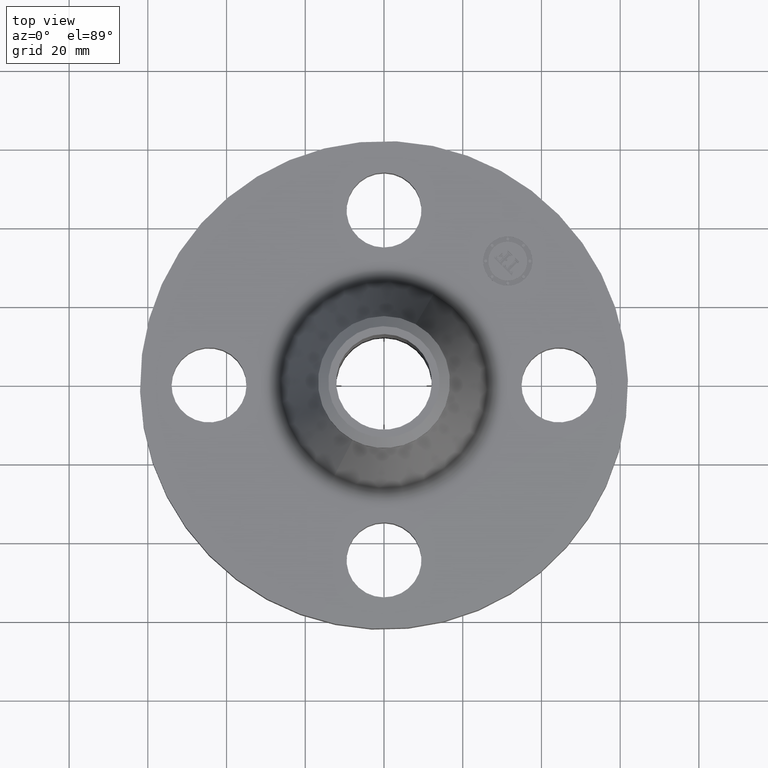
[diagram: clean part render]
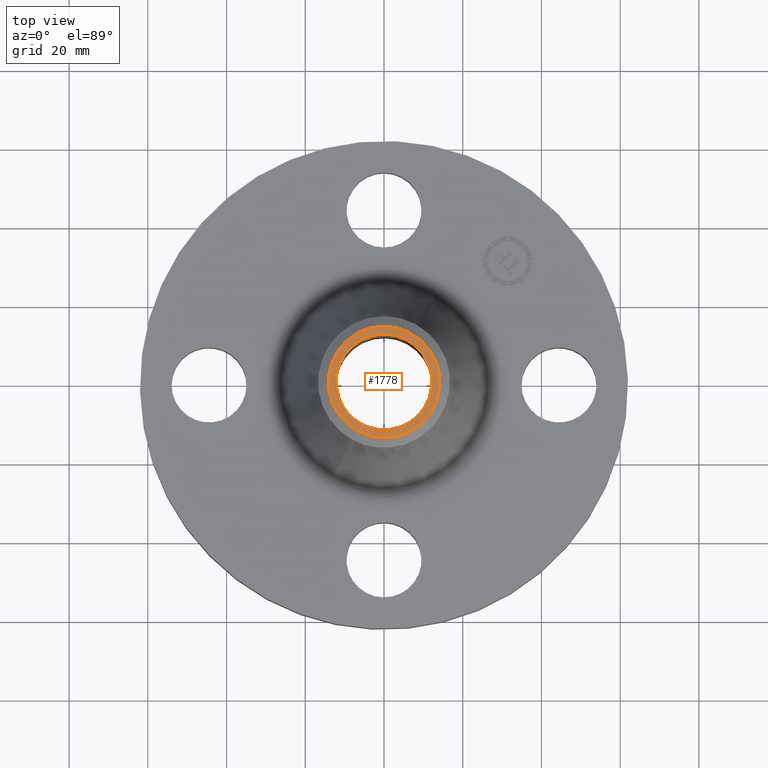
[diagram: same view with one face highlighted and labeled with its STEP entity id]
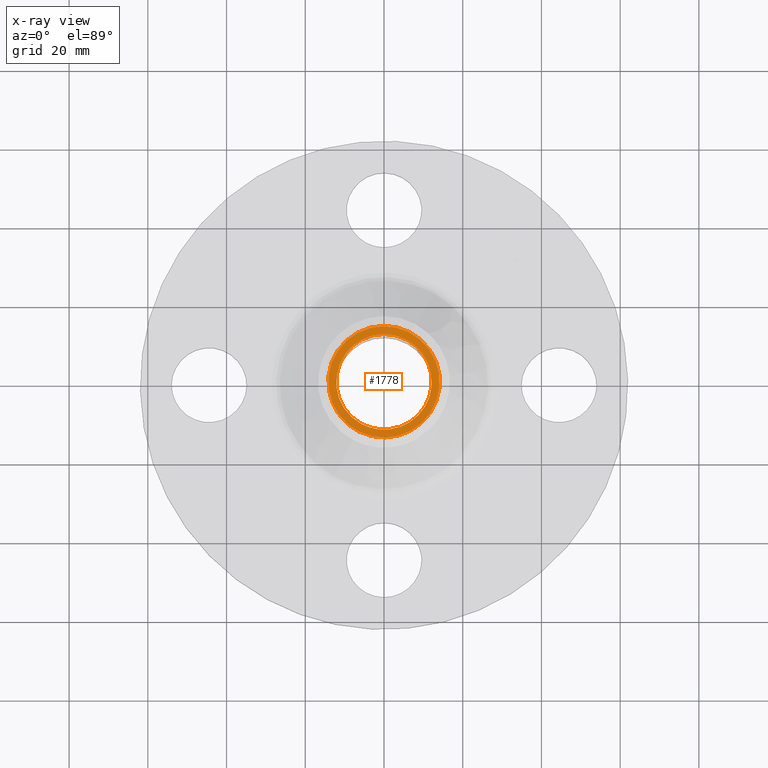
[diagram: x-ray of the same camera — body ghosted, the highlighted face saturated]
A machine part, top view. The second image highlights one B-rep face of the part: STEP entity #1778.
The next image is the same camera in x-ray: the body ghosted, the highlighted face saturated — about 0% of this face is hidden behind the body in this view.
In plain terms, the highlighted planar face has unit normal (0, 0, -1).
Its self-contained STEP definition (entity closure, byte-faithful):
#1092=AXIS2_PLACEMENT_3D('Circle Axis2P3D',#1090,#1091,$) ;
#1754=AXIS2_PLACEMENT_3D('Plane Axis2P3D',#1751,#1752,#1753) ;
#1758=AXIS2_PLACEMENT_3D('Circle Axis2P3D',#1756,#1757,$) ;
#1767=AXIS2_PLACEMENT_3D('Circle Axis2P3D',#1765,#1766,$) ;
#1041=CARTESIAN_POINT('Control Point',(0.229405120223,0.419923255866,2.38000000001)) ;
#1042=CARTESIAN_POINT('Control Point',(0.295366511008,0.383888383847,2.38000000001)) ;
#1043=CARTESIAN_POINT('Control Point',(0.354252471218,0.334902023033,2.38000000001)) ;
#1044=CARTESIAN_POINT('Control Point',(0.402660838744,0.274806163208,2.38000000001)) ;
#1045=CARTESIAN_POINT('Control Point',(0.473305668442,0.138871666265,2.38000000002)) ;
#1046=CARTESIAN_POINT('Control Point',(0.48730581617,-0.0136828331305,2.38000000002)) ;
#1047=CARTESIAN_POINT('Control Point',(0.479041511111,-0.0904069080775,2.38000000002)) ;
#1048=CARTESIAN_POINT('Control Point',(0.432874744661,-0.236480550799,2.38000000002)) ;
#1049=CARTESIAN_POINT('Control Point',(0.334902023033,-0.354252471218,2.38000000003)) ;
#1050=CARTESIAN_POINT('Control Point',(0.274806163209,-0.402660838744,2.38000000003)) ;
#1051=CARTESIAN_POINT('Control Point',(0.138871666265,-0.473305668442,2.38000000003)) ;
#1052=CARTESIAN_POINT('Control Point',(-0.0136828331304,-0.48730581617,2.38000000003)) ;
#1053=CARTESIAN_POINT('Control Point',(-0.0904069080775,-0.479041511111,2.38000000003)) ;
#1054=CARTESIAN_POINT('Control Point',(-0.163443729438,-0.455958127886,2.38000000003)) ;
#1055=CARTESIAN_POINT('Control Point',(-0.229405120223,-0.419923255866,2.38000000004)) ;
#1056=CARTESIAN_POINT('Vertex',(0.229405120223,0.419923255866,2.38000000004)) ;
#1058=CARTESIAN_POINT('Vertex',(-0.229405120206,-0.419923255865,2.38000000001)) ;
#1090=CARTESIAN_POINT('Axis2P3D Location',(0.,0.,2.38000000004)) ;
#1751=CARTESIAN_POINT('Axis2P3D Location',(0.,0.660000000003,2.38000000001)) ;
#1756=CARTESIAN_POINT('Axis2P3D Location',(-5.24514814784E-017,-1.4013217533E-011,2.38000000001)) ;
#1760=CARTESIAN_POINT('Vertex',(0.267155162633,-0.489024244991,2.38000000001)) ;
#1762=CARTESIAN_POINT('Vertex',(-0.267155162633,0.489024244991,2.38000000001)) ;
#1765=CARTESIAN_POINT('Axis2P3D Location',(3.08536048853E-011,2.84245068427E-012,2.38000000001)) ;
#1091=DIRECTION('Axis2P3D Direction',(-0.,0.,-0.0393700787402)) ;
#1752=DIRECTION('Axis2P3D Direction',(0.,0.,-0.0393700787402)) ;
#1753=DIRECTION('Axis2P3D XDirection',(0.0393700787402,0.,0.)) ;
#1757=DIRECTION('Axis2P3D Direction',(0.,0.,-0.0393700787402)) ;
#1766=DIRECTION('Axis2P3D Direction',(0.,0.,-0.0393700787402)) ;
#1771=ORIENTED_EDGE('',*,*,#1764,.T.) ;
#1772=ORIENTED_EDGE('',*,*,#1769,.T.) ;
#1775=ORIENTED_EDGE('',*,*,#1094,.T.) ;
#1776=ORIENTED_EDGE('',*,*,#1060,.T.) ;
#1777=FACE_BOUND('',#1774,.T.) ;
#1778=ADVANCED_FACE('PartBody',(#1773,#1777),#1755,.F.) ;
#1040=B_SPLINE_CURVE_WITH_KNOTS('',5,(#1041,#1042,#1043,#1044,#1045,#1046,#1047,#1048,#1049,#1050,#1051,#1052,#1053,#1054,#1055),.UNSPECIFIED.,.F.,.U.,(6,3,3,3,6),(-19.0913014763,-9.54565073816,-1.7763568394E-015,9.54565073816,19.0913014763),.UNSPECIFIED.) ;
#1093=CIRCLE('generated circle',#1092,0.478500000002) ;
#1759=CIRCLE('generated circle',#1758,0.557240157504) ;
#1768=CIRCLE('generated circle',#1767,0.557240157504) ;
#1060=EDGE_CURVE('',#1057,#1059,#1040,.T.) ;
#1094=EDGE_CURVE('',#1059,#1057,#1093,.T.) ;
#1764=EDGE_CURVE('',#1761,#1763,#1759,.F.) ;
#1769=EDGE_CURVE('',#1763,#1761,#1768,.F.) ;
#1770=EDGE_LOOP('',(#1771,#1772)) ;
#1774=EDGE_LOOP('',(#1775,#1776)) ;
#1773=FACE_OUTER_BOUND('',#1770,.T.) ;
#1755=PLANE('',#1754) ;
#1057=VERTEX_POINT('',#1056) ;
#1059=VERTEX_POINT('',#1058) ;
#1761=VERTEX_POINT('',#1760) ;
#1763=VERTEX_POINT('',#1762) ;